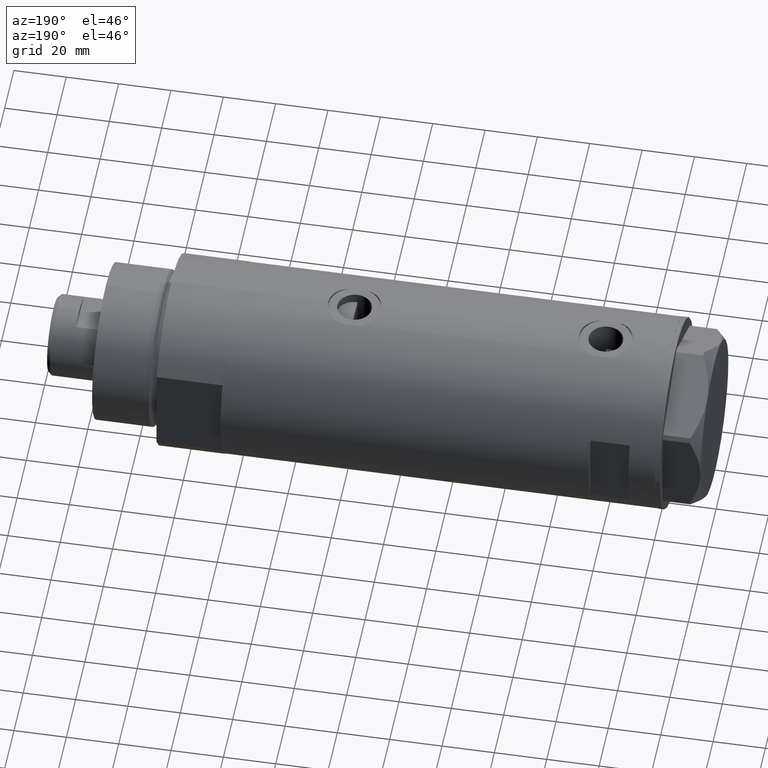
[diagram: clean part render]
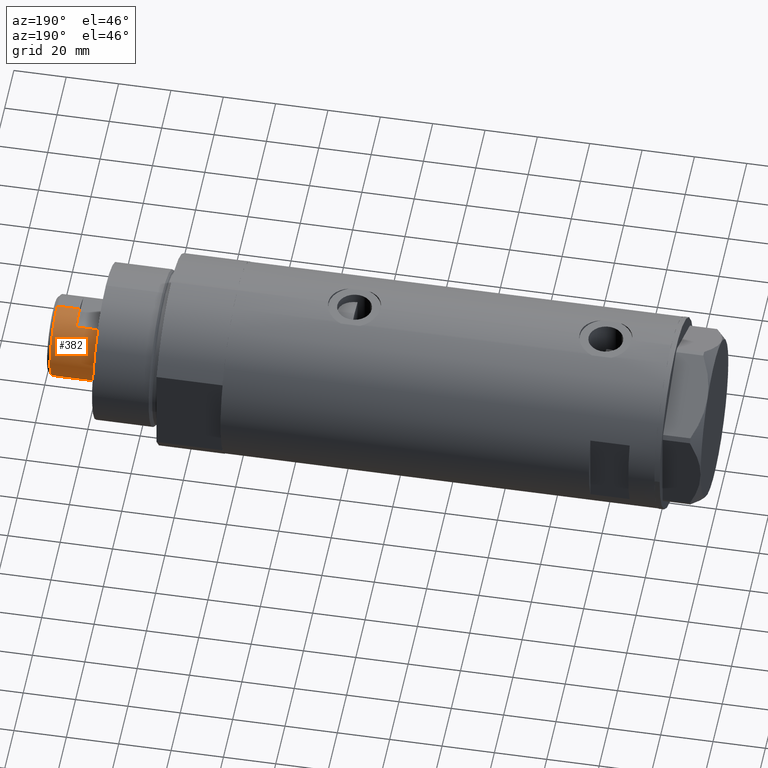
[diagram: same view with one face highlighted and labeled with its STEP entity id]
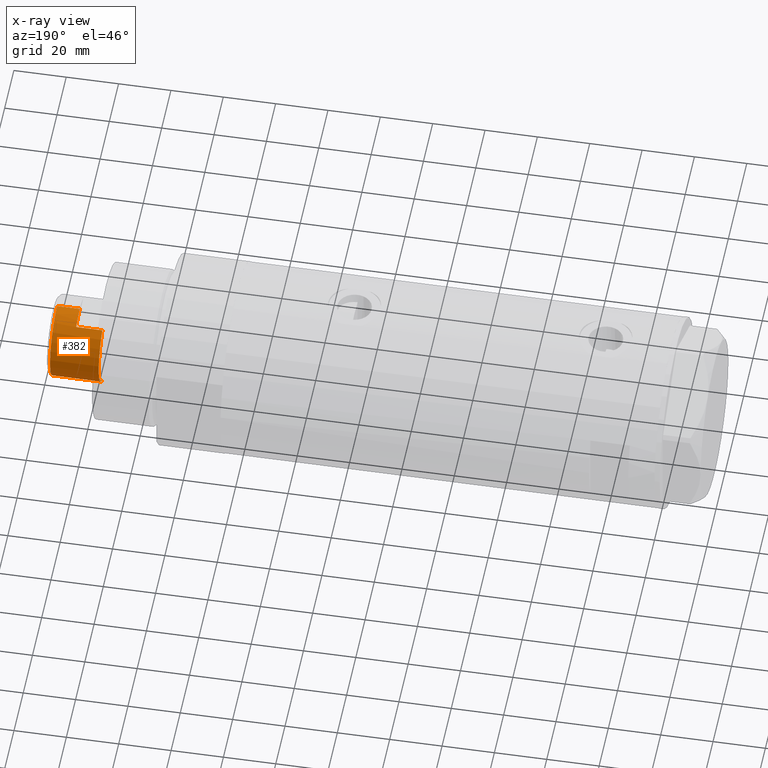
[diagram: x-ray of the same camera — body ghosted, the highlighted face saturated]
A machine part, auxiliary view. The second image highlights one B-rep face of the part: STEP entity #382.
The next image is the same camera in x-ray: the body ghosted, the highlighted face saturated — about 0% of this face is hidden behind the body in this view.
In plain terms, the highlighted cylindrical surface (partial cylindrical patch) has radius 15.5 mm, axis along (-1, -0, 0).
Its self-contained STEP definition (entity closure, byte-faithful):
#21 = DIRECTION ( 'NONE',  ( -0.000000000000000000, -0.000000000000000000, -1.000000000000000000 ) ) ;
#47 = CARTESIAN_POINT ( 'NONE',  ( 0.000000000000000000, 0.000000000000000000, 200.0000000000000000 ) ) ;
#59 = ORIENTED_EDGE ( 'NONE', *, *, #2316, .F. ) ;
#221 = LINE ( 'NONE', #589, #838 ) ;
#231 = DIRECTION ( 'NONE',  ( 0.000000000000000000, 0.000000000000000000, -1.000000000000000000 ) ) ;
#353 = EDGE_LOOP ( 'NONE', ( #803, #1741, #3081, #1589, #2841, #59, #2514, #1249 ) ) ;
#371 = VERTEX_POINT ( 'NONE', #1448 ) ;
#381 = CARTESIAN_POINT ( 'NONE',  ( 0.000000000000000000, 0.000000000000000000, 190.0000000000000000 ) ) ;
#382 = ADVANCED_FACE ( 'NONE', ( #3919 ), #814, .T. ) ;
#398 = AXIS2_PLACEMENT_3D ( 'NONE', #47, #21, #2455 ) ;
#472 = CIRCLE ( 'NONE', #1612, 15.50000000000000000 ) ;
#525 = CARTESIAN_POINT ( 'NONE',  ( 0.000000000000000000, 0.000000000000000000, 200.0000000000000000 ) ) ;
#534 = DIRECTION ( 'NONE',  ( -0.000000000000000000, -0.000000000000000000, -1.000000000000000000 ) ) ;
#559 = VERTEX_POINT ( 'NONE', #709 ) ;
#582 = EDGE_CURVE ( 'NONE', #1303, #559, #472, .T. ) ;
#589 = CARTESIAN_POINT ( 'NONE',  ( -13.48630416385452868, 7.639999999999998792, 200.0000000000000000 ) ) ;
#616 = VECTOR ( 'NONE', #1304, 1000.000000000000000 ) ;
#673 = CARTESIAN_POINT ( 'NONE',  ( 15.50000000000000178, 1.898202538678397557E-15, 200.0000000000000000 ) ) ;
#709 = CARTESIAN_POINT ( 'NONE',  ( 13.48630416385452868, 7.639999999999997904, 200.0000000000000000 ) ) ;
#803 = ORIENTED_EDGE ( 'NONE', *, *, #3176, .T. ) ;
#806 = VERTEX_POINT ( 'NONE', #1956 ) ;
#814 = CYLINDRICAL_SURFACE ( 'NONE', #398, 15.49999999999999822 ) ;
#835 = CARTESIAN_POINT ( 'NONE',  ( -15.49999999999999822, 0.000000000000000000, 208.5999999999999659 ) ) ;
#838 = VECTOR ( 'NONE', #3277, 1000.000000000000000 ) ;
#869 = LINE ( 'NONE', #2250, #3967 ) ;
#951 = VERTEX_POINT ( 'NONE', #2076 ) ;
#1009 = EDGE_CURVE ( 'NONE', #951, #1390, #3079, .T. ) ;
#1207 = CARTESIAN_POINT ( 'NONE',  ( 15.49999999999999822, 1.898202538678397163E-15, 200.0000000000000000 ) ) ;
#1249 = ORIENTED_EDGE ( 'NONE', *, *, #4444, .F. ) ;
#1303 = VERTEX_POINT ( 'NONE', #673 ) ;
#1304 = DIRECTION ( 'NONE',  ( -0.000000000000000000, -0.000000000000000000, -1.000000000000000000 ) ) ;
#1390 = VERTEX_POINT ( 'NONE', #3825 ) ;
#1399 = EDGE_CURVE ( 'NONE', #4334, #806, #3804, .T. ) ;
#1448 = CARTESIAN_POINT ( 'NONE',  ( 15.49999999999999822, 1.898202538678397163E-15, 208.5999999999999659 ) ) ;
#1569 = CARTESIAN_POINT ( 'NONE',  ( 13.48630416385452868, 7.639999999999997904, 190.0000000000000000 ) ) ;
#1589 = ORIENTED_EDGE ( 'NONE', *, *, #2789, .T. ) ;
#1605 = DIRECTION ( 'NONE',  ( 1.000000000000000000, 0.000000000000000000, 0.000000000000000000 ) ) ;
#1612 = AXIS2_PLACEMENT_3D ( 'NONE', #525, #2290, #2550 ) ;
#1706 = DIRECTION ( 'NONE',  ( 0.000000000000000000, 0.000000000000000000, 1.000000000000000000 ) ) ;
#1741 = ORIENTED_EDGE ( 'NONE', *, *, #1998, .T. ) ;
#1750 = DIRECTION ( 'NONE',  ( 0.000000000000000000, 0.000000000000000000, 1.000000000000000000 ) ) ;
#1956 = CARTESIAN_POINT ( 'NONE',  ( -13.48630416385452513, 7.639999999999917968, 190.0000000000000000 ) ) ;
#1970 = LINE ( 'NONE', #3364, #616 ) ;
#1998 = EDGE_CURVE ( 'NONE', #371, #1303, #2625, .T. ) ;
#2076 = CARTESIAN_POINT ( 'NONE',  ( -13.48630416385452868, 7.639999999999998792, 200.0000000000000000 ) ) ;
#2250 = CARTESIAN_POINT ( 'NONE',  ( -15.49999999999999822, 0.000000000000000000, 200.0000000000000000 ) ) ;
#2290 = DIRECTION ( 'NONE',  ( 0.000000000000000000, 0.000000000000000000, 1.000000000000000000 ) ) ;
#2316 = EDGE_CURVE ( 'NONE', #951, #806, #221, .T. ) ;
#2455 = DIRECTION ( 'NONE',  ( -1.000000000000000000, 0.000000000000000000, 0.000000000000000000 ) ) ;
#2510 = AXIS2_PLACEMENT_3D ( 'NONE', #381, #1750, #3140 ) ;
#2514 = ORIENTED_EDGE ( 'NONE', *, *, #1009, .T. ) ;
#2550 = DIRECTION ( 'NONE',  ( 1.000000000000000000, 0.000000000000000000, 0.000000000000000000 ) ) ;
#2625 = LINE ( 'NONE', #1207, #3444 ) ;
#2713 = CIRCLE ( 'NONE', #3585, 15.49999999999999822 ) ;
#2789 = EDGE_CURVE ( 'NONE', #559, #4334, #1970, .T. ) ;
#2841 = ORIENTED_EDGE ( 'NONE', *, *, #1399, .T. ) ;
#2848 = CARTESIAN_POINT ( 'NONE',  ( 0.000000000000000000, 0.000000000000000000, 200.0000000000000000 ) ) ;
#3079 = CIRCLE ( 'NONE', #3512, 15.50000000000000000 ) ;
#3081 = ORIENTED_EDGE ( 'NONE', *, *, #582, .T. ) ;
#3097 = DIRECTION ( 'NONE',  ( 1.000000000000000000, 0.000000000000000000, 0.000000000000000000 ) ) ;
#3140 = DIRECTION ( 'NONE',  ( 1.000000000000000000, 0.000000000000000000, 0.000000000000000000 ) ) ;
#3176 = EDGE_CURVE ( 'NONE', #3404, #371, #2713, .T. ) ;
#3277 = DIRECTION ( 'NONE',  ( -0.000000000000000000, -0.000000000000000000, -1.000000000000000000 ) ) ;
#3364 = CARTESIAN_POINT ( 'NONE',  ( 13.48630416385452868, 7.639999999999997904, 200.0000000000000000 ) ) ;
#3386 = CARTESIAN_POINT ( 'NONE',  ( 0.000000000000000000, 0.000000000000000000, 208.5999999999999659 ) ) ;
#3404 = VERTEX_POINT ( 'NONE', #835 ) ;
#3444 = VECTOR ( 'NONE', #3671, 1000.000000000000000 ) ;
#3512 = AXIS2_PLACEMENT_3D ( 'NONE', #2848, #1706, #3097 ) ;
#3585 = AXIS2_PLACEMENT_3D ( 'NONE', #3386, #231, #1605 ) ;
#3671 = DIRECTION ( 'NONE',  ( -0.000000000000000000, -0.000000000000000000, -1.000000000000000000 ) ) ;
#3804 = CIRCLE ( 'NONE', #2510, 15.49999999999995737 ) ;
#3825 = CARTESIAN_POINT ( 'NONE',  ( -15.50000000000000178, 0.000000000000000000, 200.0000000000000000 ) ) ;
#3919 = FACE_OUTER_BOUND ( 'NONE', #353, .T. ) ;
#3967 = VECTOR ( 'NONE', #534, 1000.000000000000000 ) ;
#4334 = VERTEX_POINT ( 'NONE', #1569 ) ;
#4444 = EDGE_CURVE ( 'NONE', #3404, #1390, #869, .T. ) ;